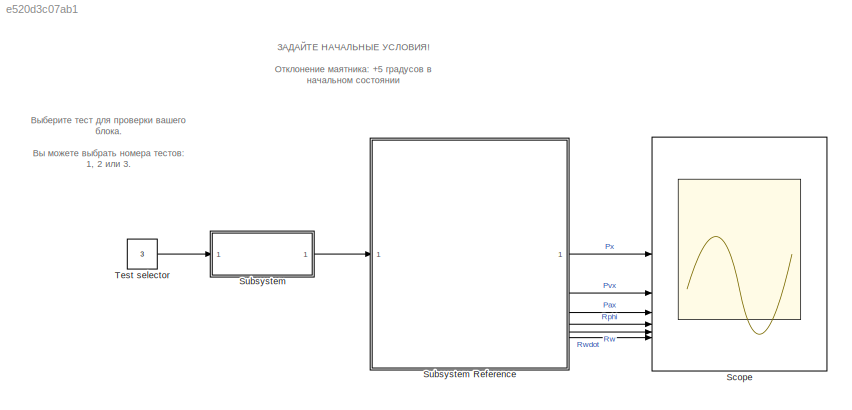
MODEL slx_e520d3c07ab1
KIND model
CONFIG AbsTol = auto
CONFIG EnableMultiTasking = off
CONFIG FixedStep = 0.001
CONFIG MaxStep = auto
CONFIG MinStep = auto
CONFIG RelTol = 1e-3
CONFIG SampleTimeConstraint = Unconstrained
CONFIG SolverName = ode1be
CONFIG StartTime = 0.0
CONFIG StopTime = 6
BLOCK [Scope] Scope
  ActiveDisplayYMaximum = 6.3629575801201366E-5
  ActiveDisplayYMinimum = -7.0700315080337945E-6
  Floating = off
  GraphicalSettings = {"Style":{"BackgroundColor":[1,1,1],"AxesColor":[1,1,1],"LabelsColor":[0,0,0],"PreserveColors":false,"Visible":[true,true,true,true,true,true],"LineStyle":["-","-","-","-","-","-"],"LineWidth":[2,2,2,2,2,2],"BarWidth":[0.9,0.9,0.9,0.9,0.9,0.9],"LineColor":[[0.6,0.2,0],[0,0,1],[1,0,0],[0,0.4980392156862745,0],[0,0.4470588235294118,0.7411764705882353],[0.8509803921568627,0.3254901960784314,0.0980392...<+3979ch>
  LayoutDimensionsString = [2 3]
  MultipleDisplayCache = [{"MaxYLimMag":6.3629575801201366E-5,"MaxYLimReal":6.3629575801201366E-5,"MinYLimMag":0,"MinYLimReal":-7.0700315080337945E-6,"PlotAsMagnitudePhase":false,"ShowGrid":true,"ShowLegend":true,"Title":"%<SignalLabel>","YLabel":""},{"MaxYLimMag":0.0001986684115898844,"MaxYLimReal":5.9952518585441812E-5,"MinYLimMag":0,"MinYLimReal":-0.0001986684115898844,"PlotAsMagnitudePhase":false,"ShowGrid":true,"Show...<+918ch>
  NumInputPorts = 6
  ScopeFrameLocation = window
  ShowLegend = on
  Visible = on
  WasSavedAsWebScope = on
  WindowPosition = [-1.000000,52.000000,1709.000000,963.000000,]
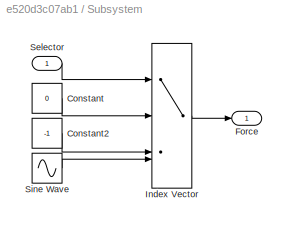
BLOCK [SubSystem] Subsystem
BLOCK [SubSystem] Subsystem Reference
  ReferencedSubsystem = InversePendulum
BLOCK [Constant] Subsystem/Constant
  Value = 0
BLOCK [Constant] Subsystem/Constant2
  Value = -1
BLOCK [Outport] Subsystem/Force
BLOCK [MultiPortSwitch] Subsystem/Index Vector
  InputSameDT = off
  SaturateOnIntegerOverflow = off
BLOCK [Inport] Subsystem/Selector
  NameLocation = top
BLOCK [Sin] Subsystem/Sine Wave
  Frequency = 10
  SampleTime = 0
BLOCK [Constant] Test selector
  Value = 3
ANNOTATION (root): Выберите тест для проверки вашего блока. Вы можете выбрать номера тестов: 1, 2 или 3.
ANNOTATION (root): ЗАДАЙТЕ НАЧАЛЬНЫЕ УСЛОВИЯ! Отклонение маятника: +5 градусов в начальном состоянии
LINE Subsystem Reference:1 -> Scope:1
LINE Subsystem Reference:2 -> Scope:2
LINE Subsystem Reference:3 -> Scope:3
LINE Subsystem Reference:4 -> Scope:4
LINE Subsystem Reference:5 -> Scope:5
LINE Subsystem Reference:6 -> Scope:6
LINE Subsystem/Constant2:1 -> Subsystem/Index Vector:3
LINE Subsystem/Constant:1 -> Subsystem/Index Vector:2
LINE Subsystem/Index Vector:1 -> Subsystem/Force:1
LINE Subsystem/Selector:1 -> Subsystem/Index Vector:1
LINE Subsystem/Sine Wave:1 -> Subsystem/Index Vector:4
LINE Subsystem:1 -> Subsystem Reference:1
LINE Test selector:1 -> Subsystem:1
